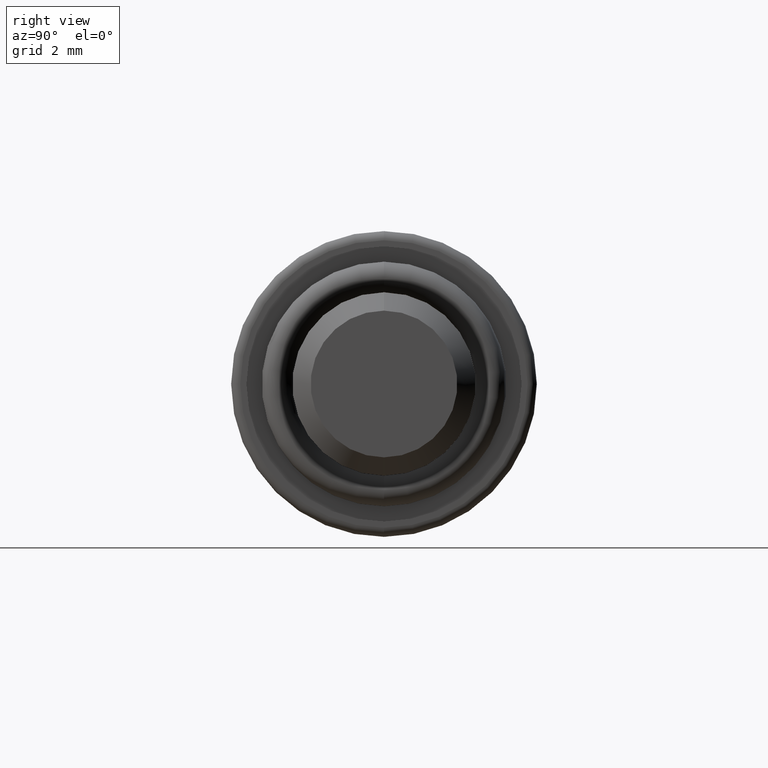
[diagram: clean part render]
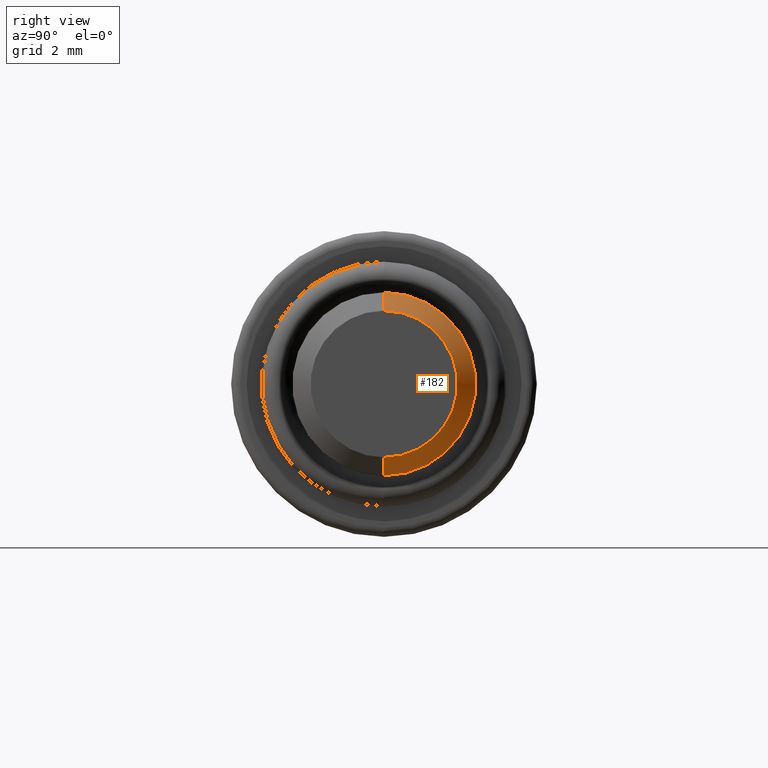
[diagram: same view with one face highlighted and labeled with its STEP entity id]
A machine part, right view. The second image highlights one B-rep face of the part: STEP entity #182.
In plain terms, the highlighted conical surface has half-angle 45 deg.
Its self-contained STEP definition (entity closure, byte-faithful):
#48 = ORIENTED_EDGE ( 'NONE', *, *, #414, .F. ) ;
#57 = EDGE_CURVE ( 'NONE', #199, #267, #783, .T. ) ;
#76 = DIRECTION ( 'NONE',  ( 0.0000000000000000000, 0.0000000000000000000, -1.000000000000000000 ) ) ;
#82 = EDGE_CURVE ( 'NONE', #733, #708, #730, .T. ) ;
#94 = CARTESIAN_POINT ( 'NONE',  ( 14.40000000000000000, 3.673940397442060400E-016, -3.000000000000000400 ) ) ;
#158 = ORIENTED_EDGE ( 'NONE', *, *, #82, .T. ) ;
#163 = AXIS2_PLACEMENT_3D ( 'NONE', #456, #711, #320 ) ;
#182 = ADVANCED_FACE ( 'NONE', ( #493 ), #643, .T. ) ;
#183 = DIRECTION ( 'NONE',  ( 0.0000000000000000000, 0.0000000000000000000, 1.000000000000000000 ) ) ;
#186 = DIRECTION ( 'NONE',  ( -0.7071067811865489100, 8.659560562354918100E-017, -0.7071067811865462400 ) ) ;
#197 = CARTESIAN_POINT ( 'NONE',  ( 15.00000000000000000, 0.0000000000000000000, 0.0000000000000000000 ) ) ;
#199 = VERTEX_POINT ( 'NONE', #618 ) ;
#202 = AXIS2_PLACEMENT_3D ( 'NONE', #499, #465, #76 ) ;
#267 = VERTEX_POINT ( 'NONE', #422 ) ;
#310 = VECTOR ( 'NONE', #314, 999.9999999999998900 ) ;
#314 = DIRECTION ( 'NONE',  ( -0.7071067811865489100, 0.0000000000000000000, 0.7071067811865462400 ) ) ;
#320 = DIRECTION ( 'NONE',  ( 0.0000000000000000000, 0.0000000000000000000, -1.000000000000000000 ) ) ;
#332 = DIRECTION ( 'NONE',  ( -1.000000000000000000, 0.0000000000000000000, 0.0000000000000000000 ) ) ;
#352 = EDGE_LOOP ( 'NONE', ( #48, #158, #415, #543 ) ) ;
#400 = EDGE_CURVE ( 'NONE', #267, #708, #411, .T. ) ;
#411 = CIRCLE ( 'NONE', #163, 3.000000000000000400 ) ;
#414 = EDGE_CURVE ( 'NONE', #733, #199, #554, .T. ) ;
#415 = ORIENTED_EDGE ( 'NONE', *, *, #400, .F. ) ;
#422 = CARTESIAN_POINT ( 'NONE',  ( 14.40000000000000000, 0.0000000000000000000, 3.000000000000000400 ) ) ;
#456 = CARTESIAN_POINT ( 'NONE',  ( 14.40000000000000000, 0.0000000000000000000, 0.0000000000000000000 ) ) ;
#465 = DIRECTION ( 'NONE',  ( 1.000000000000000000, 0.0000000000000000000, 0.0000000000000000000 ) ) ;
#493 = FACE_OUTER_BOUND ( 'NONE', #352, .T. ) ;
#499 = CARTESIAN_POINT ( 'NONE',  ( 15.00000000000000000, 0.0000000000000000000, 0.0000000000000000000 ) ) ;
#543 = ORIENTED_EDGE ( 'NONE', *, *, #57, .F. ) ;
#554 = CIRCLE ( 'NONE', #202, 2.400000000000003000 ) ;
#592 = VECTOR ( 'NONE', #186, 999.9999999999998900 ) ;
#618 = CARTESIAN_POINT ( 'NONE',  ( 15.00000000000000000, 0.0000000000000000000, 2.400000000000003000 ) ) ;
#643 = CONICAL_SURFACE ( 'NONE', #793, 2.400000000000003000, 0.7853981633974465000 ) ;
#689 = CARTESIAN_POINT ( 'NONE',  ( 15.00000000000000000, 3.306546357697855700E-016, -2.400000000000003000 ) ) ;
#708 = VERTEX_POINT ( 'NONE', #94 ) ;
#711 = DIRECTION ( 'NONE',  ( -1.000000000000000000, 0.0000000000000000000, 0.0000000000000000000 ) ) ;
#730 = LINE ( 'NONE', #812, #592 ) ;
#733 = VERTEX_POINT ( 'NONE', #689 ) ;
#736 = CARTESIAN_POINT ( 'NONE',  ( 15.00000000000000000, 0.0000000000000000000, 2.400000000000003000 ) ) ;
#783 = LINE ( 'NONE', #736, #310 ) ;
#793 = AXIS2_PLACEMENT_3D ( 'NONE', #197, #332, #183 ) ;
#812 = CARTESIAN_POINT ( 'NONE',  ( 15.00000000000000000, 2.939152317953651000E-016, -2.400000000000003000 ) ) ;